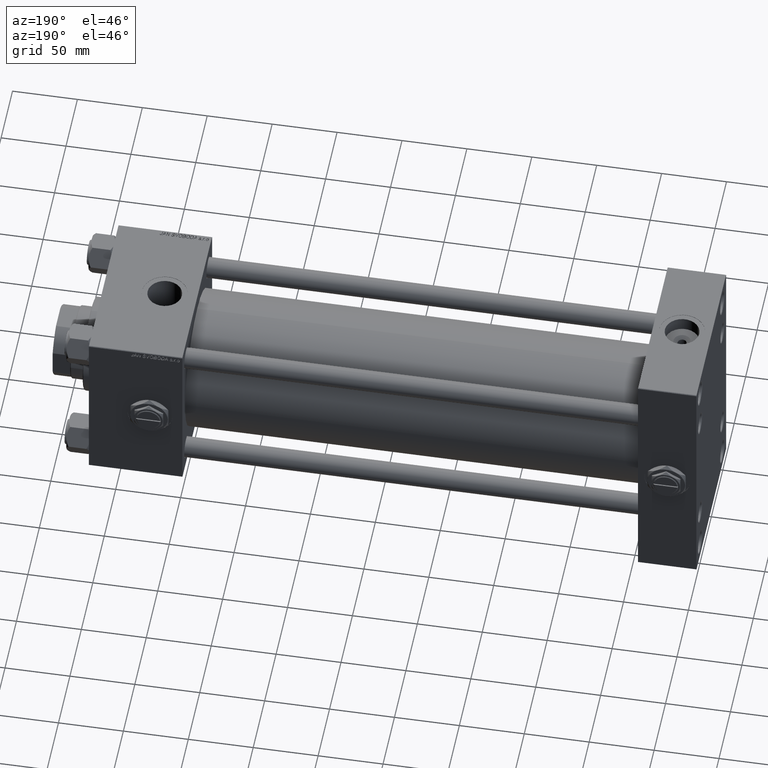
[diagram: clean part render]
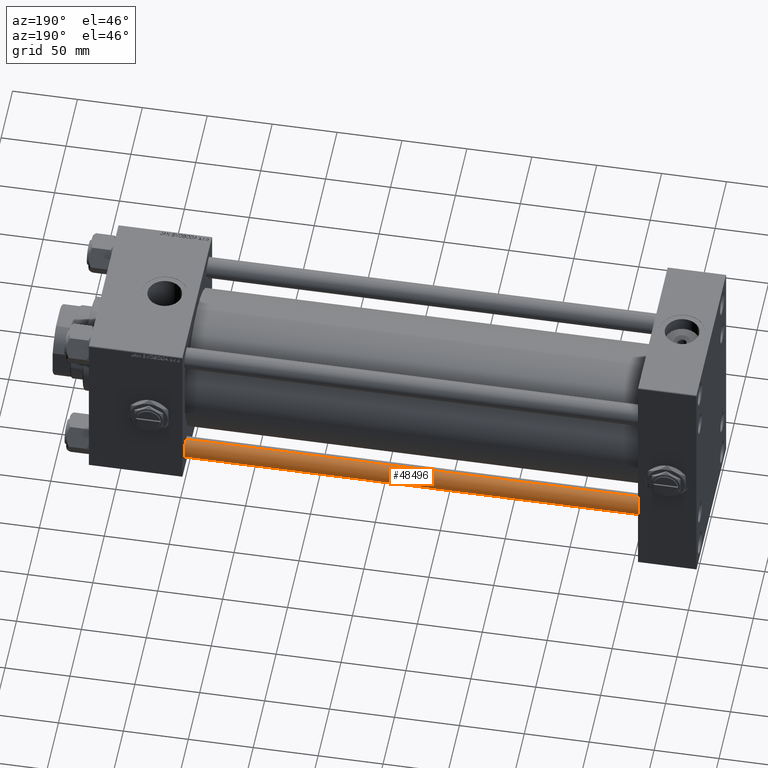
[diagram: same view with one face highlighted and labeled with its STEP entity id]
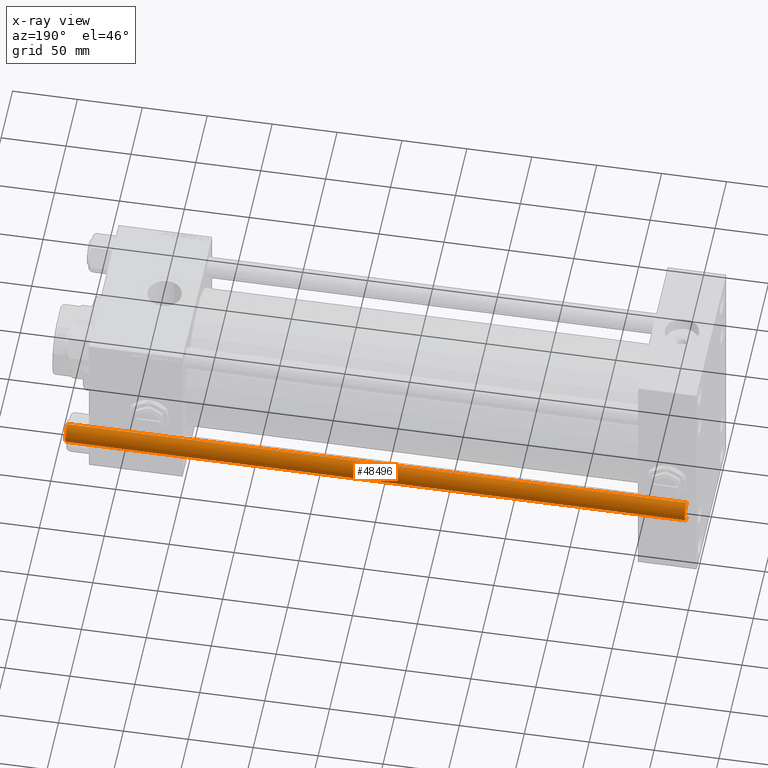
[diagram: x-ray of the same camera — body ghosted, the highlighted face saturated]
A machine part, auxiliary view. The second image highlights one B-rep face of the part: STEP entity #48496.
The next image is the same camera in x-ray: the body ghosted, the highlighted face saturated — about 0% of this face is hidden behind the body in this view.
In plain terms, the highlighted cylindrical surface (edge-blend (fillet) strip) has radius 8 mm, axis along (-1, 0, 0).
Its self-contained STEP definition (entity closure, byte-faithful):
#149 = DIRECTION ( 'NONE',  ( -0.000000000000000000, -0.000000000000000000, 1.000000000000000000 ) ) ;
#212 = CARTESIAN_POINT ( 'NONE',  ( -8.000000000000000000, 0.000000000000000000, 0.5000000000002779998 ) ) ;
#1186 = VERTEX_POINT ( 'NONE', #34235 ) ;
#1826 = CARTESIAN_POINT ( 'NONE',  ( -8.000000000000000000, 0.000000000000000000, 478.0000000000000000 ) ) ;
#2410 = EDGE_CURVE ( 'NONE', #19709, #1186, #52251, .T. ) ;
#3234 = CARTESIAN_POINT ( 'NONE',  ( 0.000000000000000000, 0.000000000000000000, 478.0000000000000000 ) ) ;
#3817 = DIRECTION ( 'NONE',  ( 0.000000000000000000, 0.000000000000000000, -1.000000000000000000 ) ) ;
#4396 = EDGE_CURVE ( 'NONE', #29121, #31052, #28585, .T. ) ;
#5076 = VECTOR ( 'NONE', #41242, 1000.000000000000000 ) ;
#7401 = EDGE_CURVE ( 'NONE', #19709, #31052, #33437, .T. ) ;
#8264 = AXIS2_PLACEMENT_3D ( 'NONE', #3234, #47903, #27982 ) ;
#16187 = EDGE_CURVE ( 'NONE', #1186, #29121, #24789, .T. ) ;
#16372 = ORIENTED_EDGE ( 'NONE', *, *, #16187, .T. ) ;
#17125 = ORIENTED_EDGE ( 'NONE', *, *, #4396, .T. ) ;
#19709 = VERTEX_POINT ( 'NONE', #43187 ) ;
#20831 = AXIS2_PLACEMENT_3D ( 'NONE', #27791, #3817, #43465 ) ;
#23202 = CYLINDRICAL_SURFACE ( 'NONE', #8264, 8.000000000000000000 ) ;
#24707 = EDGE_LOOP ( 'NONE', ( #38776, #47499, #16372, #17125 ) ) ;
#24789 = LINE ( 'NONE', #1826, #5076 ) ;
#27791 = CARTESIAN_POINT ( 'NONE',  ( 0.000000000000000000, 0.000000000000000000, 477.5000000000002274 ) ) ;
#27982 = DIRECTION ( 'NONE',  ( -1.000000000000000000, 0.000000000000000000, 0.000000000000000000 ) ) ;
#28585 = CIRCLE ( 'NONE', #41267, 8.000000000000000000 ) ;
#29121 = VERTEX_POINT ( 'NONE', #212 ) ;
#31052 = VERTEX_POINT ( 'NONE', #47144 ) ;
#31979 = VECTOR ( 'NONE', #49890, 1000.000000000000000 ) ;
#33437 = LINE ( 'NONE', #40607, #31979 ) ;
#34235 = CARTESIAN_POINT ( 'NONE',  ( -8.000000000000000000, 0.000000000000000000, 477.5000000000002274 ) ) ;
#35692 = FACE_OUTER_BOUND ( 'NONE', #24707, .T. ) ;
#36062 = CARTESIAN_POINT ( 'NONE',  ( 0.000000000000000000, 0.000000000000000000, 0.5000000000002779998 ) ) ;
#38776 = ORIENTED_EDGE ( 'NONE', *, *, #7401, .F. ) ;
#40607 = CARTESIAN_POINT ( 'NONE',  ( 8.000000000000000000, 9.797174393178823685E-16, 478.0000000000000000 ) ) ;
#41242 = DIRECTION ( 'NONE',  ( -0.000000000000000000, -0.000000000000000000, -1.000000000000000000 ) ) ;
#41267 = AXIS2_PLACEMENT_3D ( 'NONE', #36062, #149, #48025 ) ;
#43187 = CARTESIAN_POINT ( 'NONE',  ( 8.000000000000000000, 9.797174393178823685E-16, 477.5000000000002274 ) ) ;
#43465 = DIRECTION ( 'NONE',  ( 1.000000000000000000, 0.000000000000000000, 0.000000000000000000 ) ) ;
#47144 = CARTESIAN_POINT ( 'NONE',  ( 8.000000000000000000, 9.797174393178823685E-16, 0.5000000000002779998 ) ) ;
#47499 = ORIENTED_EDGE ( 'NONE', *, *, #2410, .T. ) ;
#47903 = DIRECTION ( 'NONE',  ( -0.000000000000000000, -0.000000000000000000, -1.000000000000000000 ) ) ;
#48025 = DIRECTION ( 'NONE',  ( 1.000000000000000000, 0.000000000000000000, 0.000000000000000000 ) ) ;
#48496 = ADVANCED_FACE ( 'NONE', ( #35692 ), #23202, .T. ) ;
#49890 = DIRECTION ( 'NONE',  ( -0.000000000000000000, -0.000000000000000000, -1.000000000000000000 ) ) ;
#52251 = CIRCLE ( 'NONE', #20831, 8.000000000000000000 ) ;